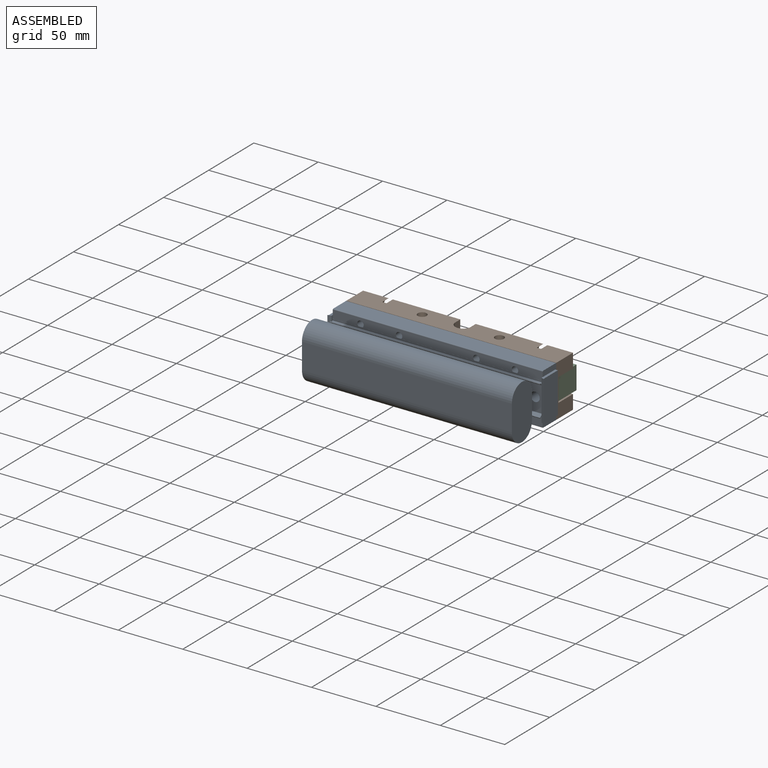
[diagram: assembled view]
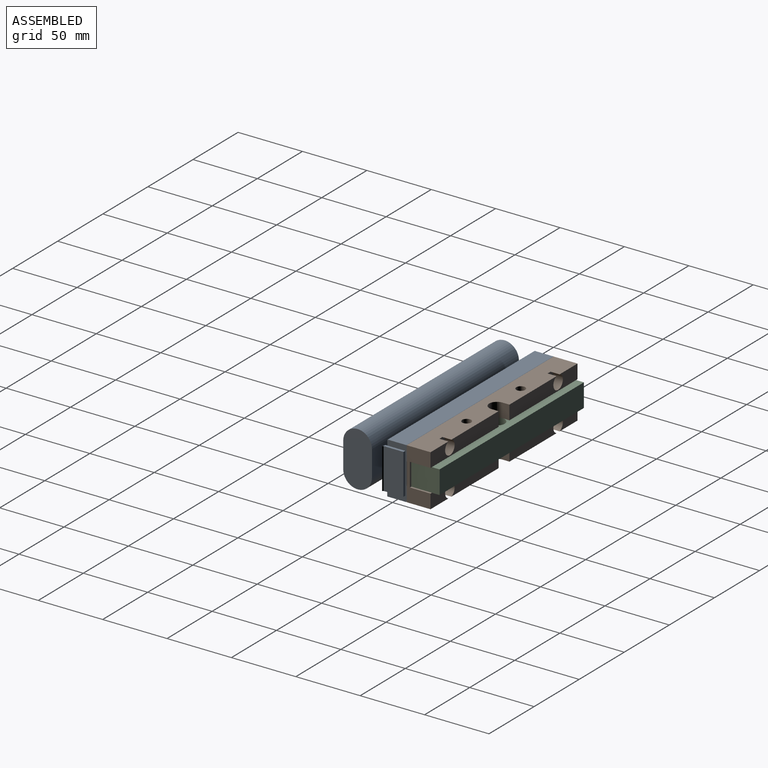
[diagram: assembled view, second angle]
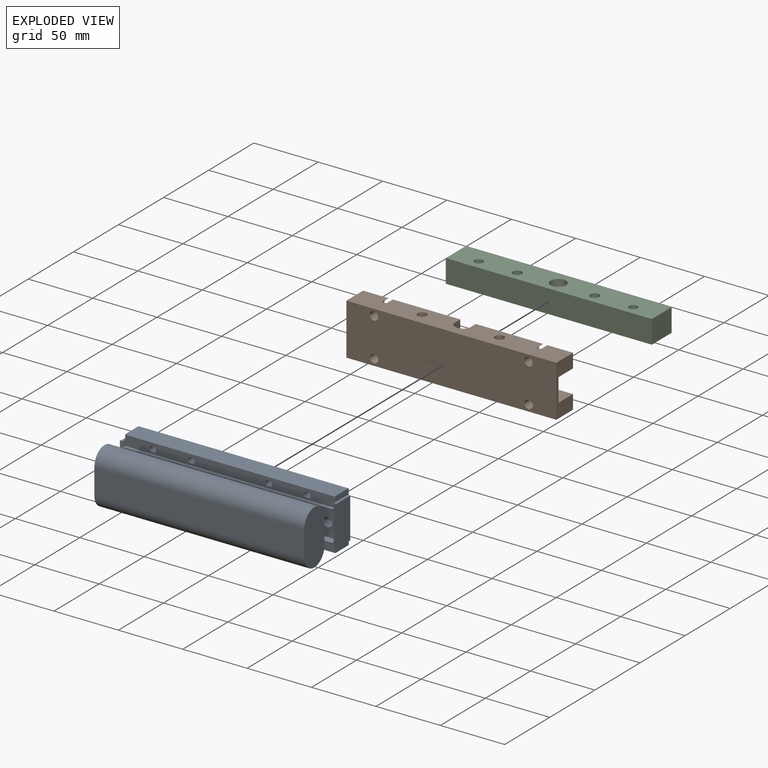
[diagram: exploded view]
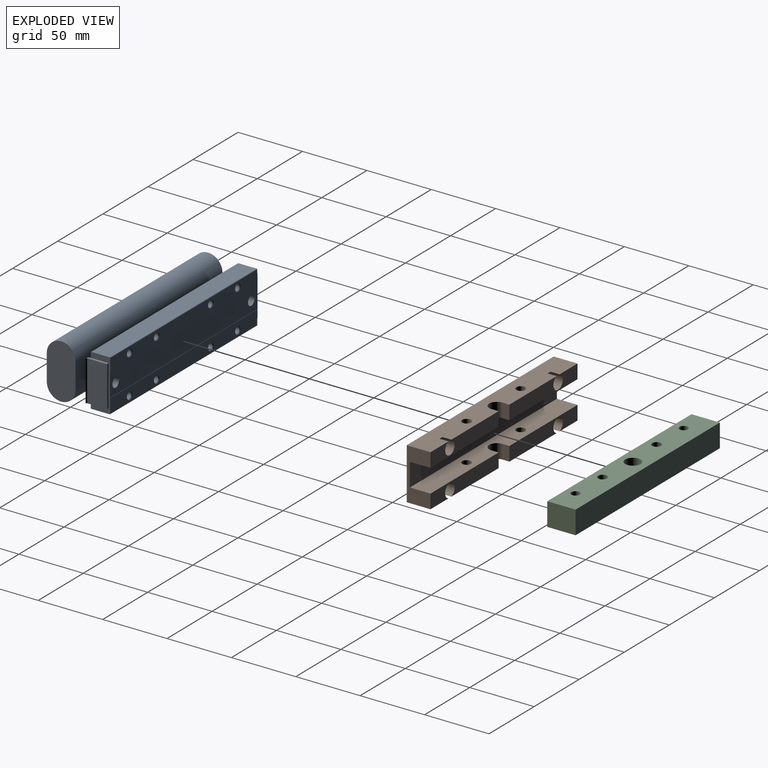
[diagram: exploded view, second angle]
ASSEMBLY  parts=3 mates=2
PART A: 92 faces, bbox 42.4x49.3x168.4 mm
  f0: plane 163x20.05mm, normal (0,-1,0), area 3268.2mm2, adj f1,f2,f90,f91
  f1: plane 42.35x22.3mm, normal (0,0,1), area 837.7mm2, adj f0,f10,f90,f91
  f2: plane 42.35x22.3mm, normal (0,0,-1), area 837.7mm2, adj f0,f10,f90,f91
  f3: cone r=1mm half-angle=45deg, axis (0,1,0), area 12.2mm2, adj f22,f25
  f4: cone r=1mm half-angle=45deg, axis (0,1,0), area 12.2mm2, adj f22,f27
  f5: cone r=1mm half-angle=45deg, axis (0,1,0), area 12.2mm2, adj f22,f28
  f6: cone r=1mm half-angle=45deg, axis (0,1,0), area 12.2mm2, adj f22,f29
  f7: cylinder r=6mm len=73mm, axis (0,0,1), area 688mm2, adj f10,f11,f34,f36
  f8: plane 73x0.48mm, normal (-1,0,0), area 34.7mm2, adj f9,f34,f35,f36
  f9: cylinder r=6mm len=73mm, axis (0,0,1), area 688mm2, adj f8,f10,f34,f36
  f10: plane 163x20.05mm, normal (0,1,0), area 1954.2mm2, adj f1,f2,f7,f9,f34,f36,f90,f91
  f11: plane 73x0.48mm, normal (1,0,0), area 34.7mm2, adj f7,f34,f36,f37
  f12: cone r=1mm half-angle=45deg, axis (0,1,0), area 12.2mm2, adj f18,f46
  f13: cone r=1mm half-angle=45deg, axis (0,1,0), area 12.2mm2, adj f18,f49
  f14: cone r=1mm half-angle=45deg, axis (0,1,0), area 12.2mm2, adj f18,f50
  f15: cone r=1mm half-angle=45deg, axis (0,1,0), area 12.2mm2, adj f18,f51
  f16: plane 163x14.1mm, normal (1,0,0), area 2298.3mm2, adj f17,f47,f48,f57
  f17: cylinder r=0.5mm len=163mm, axis (0,0,1), area 128mm2, adj f16,f18,f47,f57
  f18: plane 163x11mm, normal (0,1,0), area 1679.9mm2, adj f12,f13,f14,f15,f17,f19,f47,f57
  f19: plane 163x0.15mm, normal (-1,0,0), area 24.4mm2, adj f18,f20,f47,f57
  f20: plane 163x17mm, normal (0,1,0), area 2689.6mm2, adj f19,f21,f38,f39,f47,f57
  f21: plane 163x0.15mm, normal (1,0,0), area 24.4mm2, adj f20,f22,f47,f57
  f22: plane 163x11mm, normal (0,1,0), area 1679.9mm2, adj f3,f4,f5,f6,f21,f23,f47,f57
  f23: cylinder r=0.5mm len=163mm, axis (0,0,1), area 128mm2, adj f22,f24,f47,f57
  f24: plane 163x14.1mm, normal (-1,0,0), area 2298.3mm2, adj f23,f26,f47,f57
  f25: cylinder r=2.5mm len=14.6mm, axis (0,1,0), area 229.3mm2, adj f3,f30,f62
  f26: cylinder r=0.5mm len=163mm, axis (0,0,1), area 128mm2, adj f24,f47,f57,f62
  f27: cylinder r=2.5mm len=14.6mm, axis (0,1,0), area 229.3mm2, adj f4,f33,f62
  f28: cylinder r=2.5mm len=14.6mm, axis (0,1,0), area 229.3mm2, adj f5,f32,f62
  f29: cylinder r=2.5mm len=14.6mm, axis (0,1,0), area 229.3mm2, adj f6,f31,f62
  f30: plane 3.47x0.7mm, normal (0,1,0), area 1.7mm2, adj f25,f63
  f31: plane 3.47x0.7mm, normal (0,1,0), area 1.7mm2, adj f29,f63
  f32: plane 3.47x0.7mm, normal (0,1,0), area 1.7mm2, adj f28,f63
  f33: plane 3.47x0.7mm, normal (0,1,0), area 1.7mm2, adj f27,f63
  f34: plane 18x12.48mm, normal (0,0,1), area 105.8mm2, adj f7,f8,f9,f10,f11,f35,f37,f64
  f35: cylinder r=6mm len=73mm, axis (0,0,1), area 688mm2, adj f8,f34,f36,f64
  f36: plane 18x12.48mm, normal (0,0,-1), area 105.8mm2, adj f7,f8,f9,f10,f11,f35,f37,f64
  f37: cylinder r=6mm len=73mm, axis (0,0,1), area 688mm2, adj f11,f34,f36,f64
  f38: cylinder r=3.6mm len=14.35mm, axis (0,1,0), area 324.6mm2, adj f20,f64
  f39: cylinder r=3.6mm len=14.35mm, axis (0,1,0), area 324.6mm2, adj f20,f64
  f40: plane 1.68x1.64mm, normal (0,0,1), area 1.2mm2, adj f56,f61,f65,f66
  f41: plane 4.46x1.38mm, normal (0,0,-1), area 5.5mm2, adj f42,f60,f61,f62,f63,f66,f89
  f42: plane 16.05x2.7mm, normal (-1,0,0), area 31.4mm2, adj f41,f43,f44,f45,f47,f66
  f43: plane 31.5x0.7mm, normal (0,0.71,0.71), area 31.4mm2, adj f42,f44,f66,f67
  f44: plane 31.5x15.35mm, normal (0,0,1), area 483.5mm2, adj f42,f43,f45,f67
  f45: plane 31.5x2mm, normal (0,1,0), area 63mm2, adj f42,f44,f47,f67
  f46: cylinder r=2.5mm len=14.6mm, axis (0,1,0), area 229.3mm2, adj f12,f53,f68
  f47: plane 40x15.1mm, normal (0,0,1), area 161.8mm2, adj f16,f17,f18,f19,f20,f21,f22,f23
  f48: cylinder r=0.5mm len=163mm, axis (0,0,1), area 128mm2, adj f16,f47,f57,f68
  f49: cylinder r=2.5mm len=14.6mm, axis (0,1,0), area 229.3mm2, adj f13,f52,f68
  f50: cylinder r=2.5mm len=14.6mm, axis (0,1,0), area 229.3mm2, adj f14,f55,f68
  f51: cylinder r=2.5mm len=14.6mm, axis (0,1,0), area 229.3mm2, adj f15,f54,f68
  f52: plane 3.47x0.7mm, normal (0,1,0), area 1.7mm2, adj f49,f69
  f53: plane 3.47x0.7mm, normal (0,1,0), area 1.7mm2, adj f46,f69
  f54: plane 3.47x0.7mm, normal (0,1,0), area 1.7mm2, adj f51,f69
  f55: plane 3.47x0.7mm, normal (0,1,0), area 1.7mm2, adj f50,f69
  f56: plane 163x0.53mm, normal (-0.57,-0.82,0), area 106mm2, adj f40,f61,f65,f71
  f57: plane 40x15.1mm, normal (0,0,-1), area 161.8mm2, adj f16,f17,f18,f19,f20,f21,f22,f23
  f58: plane 31.5x15.35mm, normal (0,0,-1), area 483.5mm2, adj f59,f72,f73,f74
  f59: plane 31.5x2mm, normal (0,1,0), area 63mm2, adj f57,f58,f72,f74
  f60: plane 163x1.34mm, normal (0,-1,0), area 218.9mm2, adj f41,f63,f75,f89
  f61: plane 163x1.52mm, normal (-0.82,0.57,0), area 302mm2, adj f40,f41,f56,f71,f75,f89
  f62: plane 163x6.3mm, normal (0,-1,0), area 955mm2, adj f25,f26,f27,f28,f29,f41,f47,f57
  f63: plane 163x0.05mm, normal (-1,0,0), area 8.2mm2, adj f30,f31,f32,f33,f41,f60,f62,f75
  f64: plane 163x22mm, normal (0,-1,0), area 2190.6mm2, adj f34,f35,f36,f37,f38,f39,f76,f77
  f65: plane 163x2.22mm, normal (0.82,-0.57,0), area 441.7mm2, adj f40,f56,f71,f76,f77,f88
  f66: plane 31.5x2.7mm, normal (0,-0.97,-0.26), area 88.2mm2, adj f40,f41,f42,f43,f67,f77,f79,f80
  f67: plane 16.05x2.7mm, normal (1,0,0), area 31.4mm2, adj f43,f44,f45,f47,f66,f80
  f68: plane 163x6.3mm, normal (0,-1,0), area 955mm2, adj f46,f47,f48,f49,f50,f51,f57,f69
  f69: plane 163x0.05mm, normal (1,0,0), area 8.2mm2, adj f52,f53,f54,f55,f68,f70,f78,f80
  f70: plane 163x1.34mm, normal (0,-1,0), area 218.9mm2, adj f69,f78,f80,f86
  f71: plane 1.68x1.64mm, normal (0,0,-1), area 1.2mm2, adj f56,f61,f65,f81
  f72: plane 16.05x2.7mm, normal (1,0,0), area 31.4mm2, adj f57,f58,f59,f73,f78,f81
  f73: plane 31.5x0.7mm, normal (0,0.71,-0.71), area 31.4mm2, adj f58,f72,f74,f81
  f74: plane 16.05x2.7mm, normal (-1,0,0), area 31.4mm2, adj f57,f58,f59,f73,f75,f81
  f75: plane 4.46x1.38mm, normal (0,0,1), area 5.5mm2, adj f60,f61,f62,f63,f74,f81,f89
  f76: plane 22x1.98mm, normal (0,0,1), area 40.8mm2, adj f64,f65,f81,f82,f87,f88
  f77: plane 22x1.98mm, normal (0,0,-1), area 40.8mm2, adj f64,f65,f66,f82,f87,f88
  f78: plane 4.46x1.38mm, normal (0,0,1), area 5.5mm2, adj f68,f69,f70,f72,f81,f84,f86
  f79: plane 1.68x1.64mm, normal (0,0,1), area 1.2mm2, adj f66,f82,f83,f84
  f80: plane 4.46x1.38mm, normal (0,0,-1), area 5.5mm2, adj f66,f67,f68,f69,f70,f84,f86
  f81: plane 31.5x2.7mm, normal (0,-0.97,0.26), area 88.2mm2, adj f71,f72,f73,f74,f75,f76,f78,f85
  f82: plane 163x2.22mm, normal (-0.82,-0.57,0), area 441.7mm2, adj f76,f77,f79,f83,f85,f87
  f83: plane 163x0.53mm, normal (0.57,-0.82,0), area 106mm2, adj f79,f82,f84,f85
  f84: plane 163x1.52mm, normal (0.82,0.57,0), area 302mm2, adj f78,f79,f80,f83,f85,f86
  f85: plane 1.68x1.64mm, normal (0,0,-1), area 1.2mm2, adj f81,f82,f83,f84
  f86: cylinder r=0.89mm len=163mm, axis (0,0,1), area 218.5mm2, adj f70,f78,f80,f84
  f87: cylinder r=0.89mm len=163mm, axis (0,0,1), area 316.5mm2, adj f64,f76,f77,f82
  f88: cylinder r=0.89mm len=163mm, axis (0,0,1), area 316.5mm2, adj f64,f65,f76,f77
  f89: cylinder r=0.89mm len=163mm, axis (0,0,1), area 218.5mm2, adj f41,f60,f61,f75
  f90: cylinder r=11.15mm len=163mm, axis (0,0,1), area 5709.7mm2, adj f0,f1,f2,f10
  f91: cylinder r=11.15mm len=163mm, axis (0,0,1), area 5709.7mm2, adj f0,f1,f2,f10
PART B: 34 faces, bbox 163x18.5x40 mm
  f0: plane 75.5x11mm, normal (0,1,0), area 744.4mm2, adj f3,f4,f11,f22,f32
  f1: plane 75.5x11mm, normal (0,1,0), area 744.4mm2, adj f2,f5,f11,f19,f30
  f2: plane 163x18.5mm, normal (0,0,1), area 2771.2mm2, adj f1,f6,f8,f10,f11,f12,f15,f16
  f3: plane 163x18.5mm, normal (0,0,-1), area 2771.2mm2, adj f0,f7,f9,f10,f11,f12,f21,f22
  f4: plane 163x16mm, normal (0,0,1), area 2408.5mm2, adj f0,f7,f9,f10,f11,f13,f28,f29
  f5: plane 163x16mm, normal (0,0,-1), area 2408.5mm2, adj f1,f6,f8,f10,f11,f13,f26,f27
  f6: cylinder r=6mm len=12mm, axis (0,0,-1), area 207.3mm2, adj f2,f5,f30,f31
  f7: cylinder r=6mm len=12mm, axis (0,0,-1), area 207.3mm2, adj f3,f4,f32,f33
  f8: plane 75.5x11mm, normal (0,1,0), area 744.4mm2, adj f2,f5,f10,f16,f31
  f9: plane 75.5x11mm, normal (0,1,0), area 744.4mm2, adj f3,f4,f10,f25,f33
  f10: plane 40x18.5mm, normal (1,0,0), area 452mm2, adj f2,f3,f4,f5,f8,f9,f12,f13
  f11: plane 40x18.5mm, normal (-1,0,0), area 452mm2, adj f0,f1,f2,f3,f4,f5,f12,f13
  f12: plane 163x40mm, normal (0,-1,0), area 6387.3mm2, adj f2,f3,f10,f11,f14,f17,f20,f23
  f13: plane 163x18mm, normal (0,1,0), area 2934mm2, adj f4,f5,f10,f11
  f14: cylinder r=3.25mm len=11.5mm, axis (0,1,0), area 234.8mm2, adj f12,f15
  f15: plane 10.5x10.25mm, normal (0,1,0), area 52.9mm2, adj f2,f14,f16
  f16: cylinder r=5.25mm len=10.5mm, axis (0,-1,0), area 208.1mm2, adj f2,f8,f15
  f17: cylinder r=3.25mm len=11.5mm, axis (0,1,0), area 234.8mm2, adj f12,f18
  f18: plane 10.5x10.25mm, normal (0,1,0), area 52.9mm2, adj f2,f17,f19
  f19: cylinder r=5.25mm len=10.5mm, axis (0,-1,0), area 208.1mm2, adj f1,f2,f18
  f20: cylinder r=3.25mm len=11.5mm, axis (0,1,0), area 234.8mm2, adj f12,f21
  f21: plane 10.5x10.25mm, normal (0,1,0), area 52.9mm2, adj f3,f20,f22
  f22: cylinder r=5.25mm len=10.5mm, axis (0,-1,0), area 208.1mm2, adj f0,f3,f21
  f23: cylinder r=3.25mm len=11.5mm, axis (0,1,0), area 234.8mm2, adj f12,f24
  f24: plane 10.5x10.25mm, normal (0,1,0), area 52.9mm2, adj f3,f23,f25
  f25: cylinder r=5.25mm len=10.5mm, axis (0,-1,0), area 208.1mm2, adj f3,f9,f24
  f26: cylinder r=3.5mm len=11mm, axis (0,0,-1), area 241.9mm2, adj f2,f5
  f27: cylinder r=3.5mm len=11mm, axis (0,0,-1), area 241.9mm2, adj f2,f5
  f28: cylinder r=3.5mm len=11mm, axis (0,0,-1), area 241.9mm2, adj f3,f4
  f29: cylinder r=3.5mm len=11mm, axis (0,0,-1), area 241.9mm2, adj f3,f4
  f30: plane 11x5.5mm, normal (1,0,0), area 60.5mm2, adj f1,f2,f5,f6
  f31: plane 11x5.5mm, normal (-1,0,0), area 60.5mm2, adj f2,f5,f6,f8
  f32: plane 11x5.5mm, normal (1,0,0), area 60.5mm2, adj f0,f3,f4,f7
  f33: plane 11x5.5mm, normal (-1,0,0), area 60.5mm2, adj f3,f4,f7,f9
PART C: 11 faces, bbox 160x22x18 mm
  f0: plane 22x18mm, normal (1,0,0), area 396mm2, adj f1,f3,f4,f5
  f1: plane 160x22mm, normal (0,0,-1), area 3263.6mm2, adj f0,f2,f4,f5,f6,f7,f8,f9
  f2: plane 22x18mm, normal (-1,0,0), area 396mm2, adj f1,f3,f4,f5
  f3: plane 160x22mm, normal (0,0,1), area 3263.6mm2, adj f0,f2,f4,f5,f6,f7,f8,f9
  f4: plane 160x18mm, normal (0,1,0), area 2880mm2, adj f0,f1,f2,f3
  f5: plane 160x18mm, normal (0,-1,0), area 2880mm2, adj f0,f1,f2,f3
  f6: cylinder r=6mm len=18mm, axis (0,0,-1), area 678.6mm2, adj f1,f3
  f7: cylinder r=3.5mm len=18mm, axis (0,0,-1), area 395.8mm2, adj f1,f3
  f8: cylinder r=3.5mm len=18mm, axis (0,0,-1), area 395.8mm2, adj f1,f3
  f9: cylinder r=3.25mm len=18mm, axis (0,0,-1), area 367.6mm2, adj f1,f3
  f10: cylinder r=3.25mm len=18mm, axis (0,0,-1), area 367.6mm2, adj f1,f3
PLACE A rot(axis=(0,-1,0),90deg) t=(120,24,0)mm
PLACE B at identity
PLACE C at identity
MATE fastened C.f6 <-> B.f6  axis (0,0,-1) through (120,75.12,-9)mm
MATE fastened B.f14 <-> A.f13  axis (0,-1,0) through (180,62.13,15)mm
